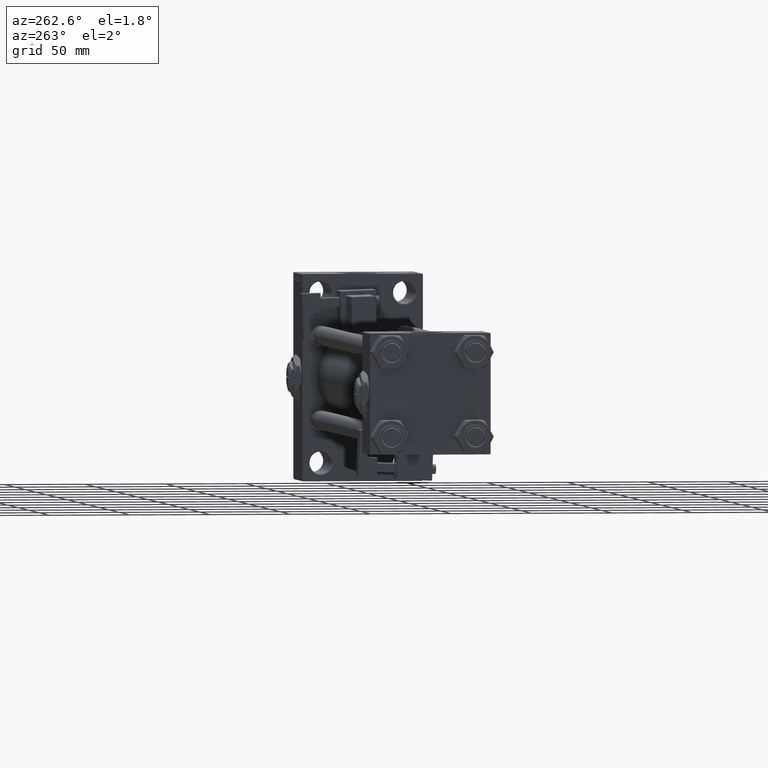
[diagram: clean part render]
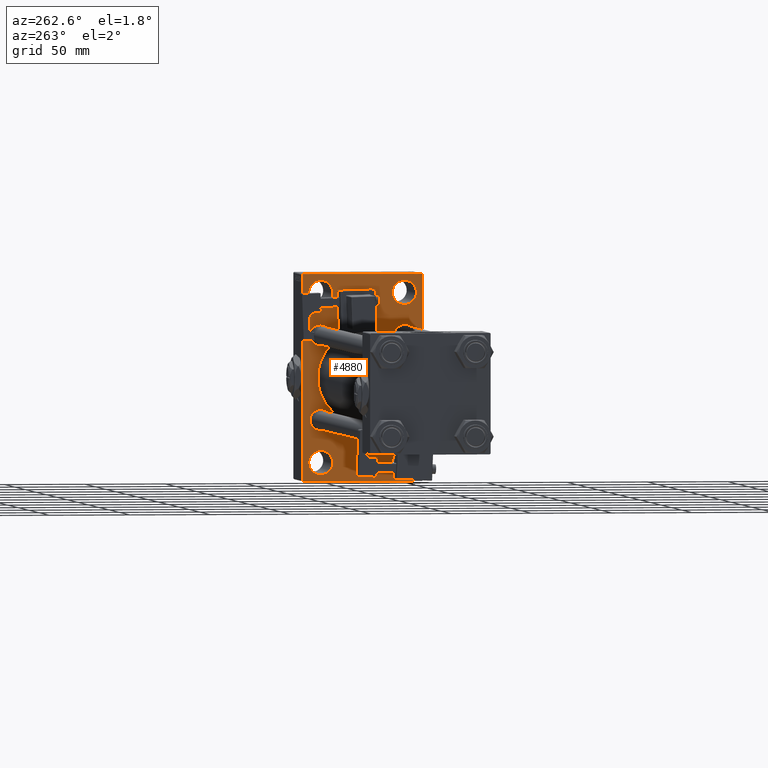
[diagram: same view with one face highlighted and labeled with its STEP entity id]
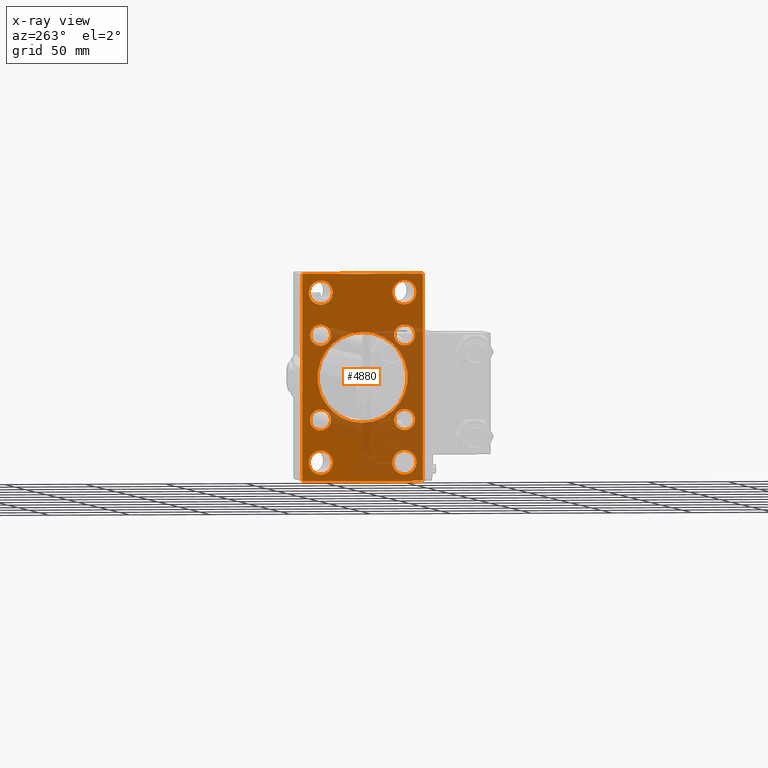
[diagram: x-ray of the same camera — body ghosted, the highlighted face saturated]
A machine part, auxiliary view. The second image highlights one B-rep face of the part: STEP entity #4880.
The next image is the same camera in x-ray: the body ghosted, the highlighted face saturated — about 35% of this face is hidden behind the body in this view.
In plain terms, the highlighted planar face has unit normal (-1, 0, 0).
Its self-contained STEP definition (entity closure, byte-faithful):
#28 = EDGE_LOOP ( 'NONE', ( #36907, #29614 ) ) ;
#194 = VERTEX_POINT ( 'NONE', #18287 ) ;
#559 = CARTESIAN_POINT ( 'NONE',  ( 324.9999999999999432, 37.50000000000000000, 63.49999999999998579 ) ) ;
#789 = AXIS2_PLACEMENT_3D ( 'NONE', #13580, #29980, #33891 ) ;
#1114 = ORIENTED_EDGE ( 'NONE', *, *, #14026, .T. ) ;
#1888 = DIRECTION ( 'NONE',  ( 0.000000000000000000, 0.000000000000000000, 1.000000000000000000 ) ) ;
#2473 = CARTESIAN_POINT ( 'NONE',  ( 324.9999999999999432, 26.14999999999999858, 26.15000000000000213 ) ) ;
#2525 = DIRECTION ( 'NONE',  ( 1.000000000000000000, -0.000000000000000000, 0.000000000000000000 ) ) ;
#2641 = DIRECTION ( 'NONE',  ( 0.000000000000000000, -1.000000000000000000, -1.850371707708594563E-16 ) ) ;
#2685 = FACE_BOUND ( 'NONE', #7656, .T. ) ;
#2834 = VECTOR ( 'NONE', #23923, 1000.000000000000000 ) ;
#2847 = EDGE_LOOP ( 'NONE', ( #1114, #29657 ) ) ;
#3502 = DIRECTION ( 'NONE',  ( 1.000000000000000000, -0.000000000000000000, 0.000000000000000000 ) ) ;
#3560 = DIRECTION ( 'NONE',  ( 1.000000000000000000, -0.000000000000000000, 0.000000000000000000 ) ) ;
#3580 = DIRECTION ( 'NONE',  ( 0.000000000000000000, 0.000000000000000000, 1.000000000000000000 ) ) ;
#3753 = DIRECTION ( 'NONE',  ( 1.000000000000000000, 0.000000000000000000, 0.000000000000000000 ) ) ;
#3791 = VERTEX_POINT ( 'NONE', #25680 ) ;
#4073 = AXIS2_PLACEMENT_3D ( 'NONE', #21736, #29541, #34227 ) ;
#4123 = LINE ( 'NONE', #20536, #2834 ) ;
#4232 = ORIENTED_EDGE ( 'NONE', *, *, #45937, .T. ) ;
#4346 = ORIENTED_EDGE ( 'NONE', *, *, #50783, .T. ) ;
#4652 = ORIENTED_EDGE ( 'NONE', *, *, #17620, .T. ) ;
#4669 = EDGE_CURVE ( 'NONE', #3791, #30598, #22894, .T. ) ;
#4880 = ADVANCED_FACE ( 'NONE', ( #38348, #30798, #51347, #2685, #26891, #15683, #31559, #6841, #11260, #7092 ), #34953, .T. ) ;
#5154 = AXIS2_PLACEMENT_3D ( 'NONE', #35069, #3560, #18961 ) ;
#5476 = DIRECTION ( 'NONE',  ( 0.000000000000000000, 0.000000000000000000, 1.000000000000000000 ) ) ;
#5696 = LINE ( 'NONE', #28866, #48211 ) ;
#5892 = EDGE_CURVE ( 'NONE', #20104, #26199, #13785, .T. ) ;
#5904 = EDGE_CURVE ( 'NONE', #36179, #7435, #18814, .T. ) ;
#6037 = ORIENTED_EDGE ( 'NONE', *, *, #30837, .T. ) ;
#6530 = CARTESIAN_POINT ( 'NONE',  ( 324.9999999999999432, -2.602085213965210642E-15, 28.00000000000000000 ) ) ;
#6724 = ORIENTED_EDGE ( 'NONE', *, *, #5904, .T. ) ;
#6841 = FACE_BOUND ( 'NONE', #2847, .T. ) ;
#6944 = CIRCLE ( 'NONE', #16951, 7.500000000000117240 ) ;
#6951 = CARTESIAN_POINT ( 'NONE',  ( 324.9999999999999432, -26.14999999999999147, 26.15000000000000924 ) ) ;
#7016 = VERTEX_POINT ( 'NONE', #33021 ) ;
#7044 = LINE ( 'NONE', #30755, #45194 ) ;
#7081 = AXIS2_PLACEMENT_3D ( 'NONE', #11769, #47434, #22988 ) ;
#7092 = FACE_OUTER_BOUND ( 'NONE', #9148, .T. ) ;
#7135 = DIRECTION ( 'NONE',  ( 0.000000000000000000, 0.000000000000000000, 1.000000000000000000 ) ) ;
#7435 = VERTEX_POINT ( 'NONE', #51402 ) ;
#7458 = VECTOR ( 'NONE', #39683, 1000.000000000000114 ) ;
#7656 = EDGE_LOOP ( 'NONE', ( #6724, #4346 ) ) ;
#8130 = CARTESIAN_POINT ( 'NONE',  ( 324.9999999999999432, -25.99999999999999645, 44.99999999999987921 ) ) ;
#8184 = CIRCLE ( 'NONE', #34771, 6.500000000000008882 ) ;
#8537 = CIRCLE ( 'NONE', #44296, 7.500000000000117240 ) ;
#8573 = VERTEX_POINT ( 'NONE', #48401 ) ;
#9148 = EDGE_LOOP ( 'NONE', ( #6037, #36650, #18672, #50291, #50804, #24155, #19272, #4232 ) ) ;
#10343 = CARTESIAN_POINT ( 'NONE',  ( 324.9999999999999432, 26.14999999999999858, -26.15000000000000213 ) ) ;
#11001 = CIRCLE ( 'NONE', #33463, 7.500000000000117240 ) ;
#11260 = FACE_BOUND ( 'NONE', #25969, .T. ) ;
#11261 = CARTESIAN_POINT ( 'NONE',  ( 324.9999999999999432, 26.14999999999999858, -32.65000000000001279 ) ) ;
#11759 = VERTEX_POINT ( 'NONE', #37993 ) ;
#11769 = CARTESIAN_POINT ( 'NONE',  ( 324.9999999999999432, 0.000000000000000000, 0.000000000000000000 ) ) ;
#11891 = AXIS2_PLACEMENT_3D ( 'NONE', #36934, #44245, #32271 ) ;
#11980 = DIRECTION ( 'NONE',  ( 0.000000000000000000, 0.000000000000000000, 1.000000000000000000 ) ) ;
#12142 = AXIS2_PLACEMENT_3D ( 'NONE', #17724, #41143, #5476 ) ;
#12430 = LINE ( 'NONE', #20249, #41712 ) ;
#12734 = EDGE_CURVE ( 'NONE', #35271, #40372, #22274, .T. ) ;
#12990 = ORIENTED_EDGE ( 'NONE', *, *, #5892, .T. ) ;
#13375 = CARTESIAN_POINT ( 'NONE',  ( 324.9999999999999432, 36.99999999999993605, -64.00000000000000000 ) ) ;
#13580 = CARTESIAN_POINT ( 'NONE',  ( 324.9999999999999432, 26.14999999999999858, 26.15000000000000213 ) ) ;
#13785 = CIRCLE ( 'NONE', #12142, 7.500000000000117240 ) ;
#13921 = DIRECTION ( 'NONE',  ( 0.000000000000000000, 0.7071067811865867636, -0.7071067811865081598 ) ) ;
#14026 = EDGE_CURVE ( 'NONE', #16031, #29623, #25640, .T. ) ;
#14074 = EDGE_CURVE ( 'NONE', #23581, #7016, #8184, .T. ) ;
#14198 = VERTEX_POINT ( 'NONE', #21692 ) ;
#14453 = AXIS2_PLACEMENT_3D ( 'NONE', #37562, #37035, #1888 ) ;
#14722 = DIRECTION ( 'NONE',  ( 0.000000000000000000, 0.000000000000000000, 1.000000000000000000 ) ) ;
#14809 = CARTESIAN_POINT ( 'NONE',  ( 324.9999999999999432, 37.49999999999999289, -64.00000000000000000 ) ) ;
#14919 = CIRCLE ( 'NONE', #4073, 6.500000000000008882 ) ;
#15422 = ORIENTED_EDGE ( 'NONE', *, *, #21673, .T. ) ;
#15518 = EDGE_LOOP ( 'NONE', ( #47015, #12990 ) ) ;
#15655 = CARTESIAN_POINT ( 'NONE',  ( 324.9999999999999432, 26.00000000000000000, -52.49999999999999289 ) ) ;
#15683 = FACE_BOUND ( 'NONE', #18484, .T. ) ;
#15907 = DIRECTION ( 'NONE',  ( 0.000000000000000000, 0.000000000000000000, 1.000000000000000000 ) ) ;
#16031 = VERTEX_POINT ( 'NONE', #41544 ) ;
#16074 = CARTESIAN_POINT ( 'NONE',  ( 324.9999999999999432, -36.99999999999992895, 63.99999999999997158 ) ) ;
#16188 = EDGE_CURVE ( 'NONE', #11759, #33267, #35509, .T. ) ;
#16337 = DIRECTION ( 'NONE',  ( 1.000000000000000000, -0.000000000000000000, 0.000000000000000000 ) ) ;
#16940 = EDGE_CURVE ( 'NONE', #39034, #194, #5696, .T. ) ;
#16951 = AXIS2_PLACEMENT_3D ( 'NONE', #39058, #47643, #11980 ) ;
#16957 = CIRCLE ( 'NONE', #14453, 7.500000000000117240 ) ;
#17620 = EDGE_CURVE ( 'NONE', #7016, #23581, #25792, .T. ) ;
#17724 = CARTESIAN_POINT ( 'NONE',  ( 324.9999999999999432, -25.99999999999999645, -52.49999999999999289 ) ) ;
#18287 = CARTESIAN_POINT ( 'NONE',  ( 324.9999999999999432, 37.49999999999999289, -63.50000000000001421 ) ) ;
#18362 = CARTESIAN_POINT ( 'NONE',  ( 324.9999999999999432, -37.49999999999999289, -63.50000000000002842 ) ) ;
#18370 = DIRECTION ( 'NONE',  ( 1.000000000000000000, -0.000000000000000000, 0.000000000000000000 ) ) ;
#18484 = EDGE_LOOP ( 'NONE', ( #19901, #4652 ) ) ;
#18672 = ORIENTED_EDGE ( 'NONE', *, *, #16188, .F. ) ;
#18814 = CIRCLE ( 'NONE', #33749, 7.500000000000117240 ) ;
#18961 = DIRECTION ( 'NONE',  ( 0.000000000000000000, 0.000000000000000000, 1.000000000000000000 ) ) ;
#19272 = ORIENTED_EDGE ( 'NONE', *, *, #16940, .T. ) ;
#19901 = ORIENTED_EDGE ( 'NONE', *, *, #14074, .T. ) ;
#20010 = VERTEX_POINT ( 'NONE', #32538 ) ;
#20104 = VERTEX_POINT ( 'NONE', #46327 ) ;
#20131 = VERTEX_POINT ( 'NONE', #21871 ) ;
#20159 = CARTESIAN_POINT ( 'NONE',  ( 324.9999999999999432, -25.99999999999999645, -44.99999999999987210 ) ) ;
#20249 = CARTESIAN_POINT ( 'NONE',  ( 324.9999999999999432, 50.49999999999739941, -50.50000000000441247 ) ) ;
#20369 = EDGE_CURVE ( 'NONE', #29623, #16031, #46829, .T. ) ;
#20521 = ORIENTED_EDGE ( 'NONE', *, *, #49539, .T. ) ;
#20536 = CARTESIAN_POINT ( 'NONE',  ( 324.9999999999999432, -50.49999999999969447, 50.50000000000039080 ) ) ;
#21673 = EDGE_CURVE ( 'NONE', #43963, #43022, #16957, .T. ) ;
#21692 = CARTESIAN_POINT ( 'NONE',  ( 324.9999999999999432, -25.99999999999999645, 60.00000000000011369 ) ) ;
#21736 = CARTESIAN_POINT ( 'NONE',  ( 324.9999999999999432, -26.14999999999999147, 26.15000000000000924 ) ) ;
#21871 = CARTESIAN_POINT ( 'NONE',  ( 324.9999999999999432, -36.99999999999993605, -64.00000000000001421 ) ) ;
#22089 = DIRECTION ( 'NONE',  ( 0.000000000000000000, 0.000000000000000000, 1.000000000000000000 ) ) ;
#22251 = EDGE_CURVE ( 'NONE', #11759, #39876, #4123, .T. ) ;
#22274 = CIRCLE ( 'NONE', #24731, 6.500000000000008882 ) ;
#22440 = CIRCLE ( 'NONE', #30744, 7.500000000000117240 ) ;
#22894 = CIRCLE ( 'NONE', #39526, 28.00000000000000000 ) ;
#22988 = DIRECTION ( 'NONE',  ( -0.000000000000000000, 0.000000000000000000, 1.000000000000000000 ) ) ;
#23052 = CARTESIAN_POINT ( 'NONE',  ( 324.9999999999999432, -2.602085213965210642E-15, 0.000000000000000000 ) ) ;
#23304 = CARTESIAN_POINT ( 'NONE',  ( 324.9999999999999432, -25.99999999999999645, 52.50000000000000000 ) ) ;
#23581 = VERTEX_POINT ( 'NONE', #40618 ) ;
#23923 = DIRECTION ( 'NONE',  ( -0.000000000000000000, 0.7071067811865524577, 0.7071067811865426878 ) ) ;
#24155 = ORIENTED_EDGE ( 'NONE', *, *, #44520, .T. ) ;
#24387 = AXIS2_PLACEMENT_3D ( 'NONE', #40280, #2525, #29615 ) ;
#24520 = CARTESIAN_POINT ( 'NONE',  ( 324.9999999999999432, 26.00000000000000000, 60.00000000000010658 ) ) ;
#24566 = ORIENTED_EDGE ( 'NONE', *, *, #47680, .T. ) ;
#24731 = AXIS2_PLACEMENT_3D ( 'NONE', #10343, #25721, #46270 ) ;
#25011 = DIRECTION ( 'NONE',  ( 0.000000000000000000, 0.000000000000000000, 1.000000000000000000 ) ) ;
#25234 = EDGE_LOOP ( 'NONE', ( #27170, #39634 ) ) ;
#25640 = CIRCLE ( 'NONE', #27301, 6.500000000000008882 ) ;
#25680 = CARTESIAN_POINT ( 'NONE',  ( 324.9999999999999432, 8.269258236473784371E-16, -28.00000000000000000 ) ) ;
#25721 = DIRECTION ( 'NONE',  ( 1.000000000000000000, -0.000000000000000000, 0.000000000000000000 ) ) ;
#25792 = CIRCLE ( 'NONE', #789, 6.500000000000008882 ) ;
#25969 = EDGE_LOOP ( 'NONE', ( #20521, #47656 ) ) ;
#26199 = VERTEX_POINT ( 'NONE', #20159 ) ;
#26808 = CIRCLE ( 'NONE', #5154, 6.500000000000008882 ) ;
#26891 = FACE_BOUND ( 'NONE', #25234, .T. ) ;
#27170 = ORIENTED_EDGE ( 'NONE', *, *, #36521, .T. ) ;
#27301 = AXIS2_PLACEMENT_3D ( 'NONE', #49862, #46211, #7135 ) ;
#28343 = CIRCLE ( 'NONE', #38344, 7.500000000000117240 ) ;
#28866 = CARTESIAN_POINT ( 'NONE',  ( 324.9999999999999432, 37.50000000000000000, 63.99999999999998579 ) ) ;
#29216 = CARTESIAN_POINT ( 'NONE',  ( 324.9999999999999432, 26.14999999999999858, -19.64999999999999503 ) ) ;
#29541 = DIRECTION ( 'NONE',  ( 1.000000000000000000, -0.000000000000000000, 0.000000000000000000 ) ) ;
#29614 = ORIENTED_EDGE ( 'NONE', *, *, #37649, .T. ) ;
#29615 = DIRECTION ( 'NONE',  ( 0.000000000000000000, 0.000000000000000000, 1.000000000000000000 ) ) ;
#29623 = VERTEX_POINT ( 'NONE', #36626 ) ;
#29657 = ORIENTED_EDGE ( 'NONE', *, *, #20369, .T. ) ;
#29980 = DIRECTION ( 'NONE',  ( 1.000000000000000000, -0.000000000000000000, 0.000000000000000000 ) ) ;
#30598 = VERTEX_POINT ( 'NONE', #6530 ) ;
#30744 = AXIS2_PLACEMENT_3D ( 'NONE', #23304, #3502, #51146 ) ;
#30755 = CARTESIAN_POINT ( 'NONE',  ( 324.9999999999999432, 37.50000000000000000, 63.99999999999998579 ) ) ;
#30798 = FACE_BOUND ( 'NONE', #15518, .T. ) ;
#30837 = EDGE_CURVE ( 'NONE', #34066, #20131, #50456, .T. ) ;
#30925 = DIRECTION ( 'NONE',  ( 0.000000000000000000, -1.000000000000000000, -1.850371707708594563E-16 ) ) ;
#31559 = FACE_BOUND ( 'NONE', #44486, .T. ) ;
#32271 = DIRECTION ( 'NONE',  ( 0.000000000000000000, 0.000000000000000000, -1.000000000000000000 ) ) ;
#32326 = AXIS2_PLACEMENT_3D ( 'NONE', #6951, #49934, #22089 ) ;
#32538 = CARTESIAN_POINT ( 'NONE',  ( 324.9999999999999432, -26.14999999999999147, 19.65000000000000213 ) ) ;
#33021 = CARTESIAN_POINT ( 'NONE',  ( 324.9999999999999432, 26.14999999999999858, 19.64999999999999147 ) ) ;
#33267 = VERTEX_POINT ( 'NONE', #18362 ) ;
#33383 = ORIENTED_EDGE ( 'NONE', *, *, #12734, .T. ) ;
#33463 = AXIS2_PLACEMENT_3D ( 'NONE', #15655, #35936, #15907 ) ;
#33749 = AXIS2_PLACEMENT_3D ( 'NONE', #49477, #40621, #25011 ) ;
#33891 = DIRECTION ( 'NONE',  ( 0.000000000000000000, 0.000000000000000000, 1.000000000000000000 ) ) ;
#34066 = VERTEX_POINT ( 'NONE', #13375 ) ;
#34227 = DIRECTION ( 'NONE',  ( 0.000000000000000000, 0.000000000000000000, 1.000000000000000000 ) ) ;
#34771 = AXIS2_PLACEMENT_3D ( 'NONE', #2473, #18370, #14722 ) ;
#34827 = CIRCLE ( 'NONE', #32326, 6.500000000000008882 ) ;
#34953 = PLANE ( 'NONE',  #7081 ) ;
#35069 = CARTESIAN_POINT ( 'NONE',  ( 324.9999999999999432, 26.14999999999999858, -26.15000000000000213 ) ) ;
#35271 = VERTEX_POINT ( 'NONE', #11261 ) ;
#35509 = LINE ( 'NONE', #50886, #50674 ) ;
#35936 = DIRECTION ( 'NONE',  ( 1.000000000000000000, -0.000000000000000000, 0.000000000000000000 ) ) ;
#36179 = VERTEX_POINT ( 'NONE', #24520 ) ;
#36521 = EDGE_CURVE ( 'NONE', #39368, #20010, #34827, .T. ) ;
#36626 = CARTESIAN_POINT ( 'NONE',  ( 324.9999999999999432, -26.14999999999999147, -32.65000000000001990 ) ) ;
#36650 = ORIENTED_EDGE ( 'NONE', *, *, #37687, .T. ) ;
#36847 = CIRCLE ( 'NONE', #11891, 28.00000000000000000 ) ;
#36907 = ORIENTED_EDGE ( 'NONE', *, *, #44148, .T. ) ;
#36934 = CARTESIAN_POINT ( 'NONE',  ( 324.9999999999999432, -2.602085213965210642E-15, 0.000000000000000000 ) ) ;
#37035 = DIRECTION ( 'NONE',  ( 1.000000000000000000, -0.000000000000000000, 0.000000000000000000 ) ) ;
#37562 = CARTESIAN_POINT ( 'NONE',  ( 324.9999999999999432, 26.00000000000000000, -52.49999999999999289 ) ) ;
#37649 = EDGE_CURVE ( 'NONE', #39513, #14198, #22440, .T. ) ;
#37687 = EDGE_CURVE ( 'NONE', #20131, #33267, #47494, .T. ) ;
#37769 = ORIENTED_EDGE ( 'NONE', *, *, #47936, .T. ) ;
#37993 = CARTESIAN_POINT ( 'NONE',  ( 324.9999999999999432, -37.49999999999999289, 63.49999999999991473 ) ) ;
#38344 = AXIS2_PLACEMENT_3D ( 'NONE', #46870, #38798, #39827 ) ;
#38348 = FACE_BOUND ( 'NONE', #28, .T. ) ;
#38798 = DIRECTION ( 'NONE',  ( 1.000000000000000000, -0.000000000000000000, 0.000000000000000000 ) ) ;
#39034 = VERTEX_POINT ( 'NONE', #559 ) ;
#39058 = CARTESIAN_POINT ( 'NONE',  ( 324.9999999999999432, 26.00000000000000000, 52.49999999999999289 ) ) ;
#39244 = CARTESIAN_POINT ( 'NONE',  ( 324.9999999999999432, -25.99999999999999645, -52.49999999999999289 ) ) ;
#39368 = VERTEX_POINT ( 'NONE', #44890 ) ;
#39513 = VERTEX_POINT ( 'NONE', #8130 ) ;
#39526 = AXIS2_PLACEMENT_3D ( 'NONE', #23052, #3753, #39684 ) ;
#39634 = ORIENTED_EDGE ( 'NONE', *, *, #40182, .T. ) ;
#39683 = DIRECTION ( 'NONE',  ( 0.000000000000000000, -0.7071067811865965336, 0.7071067811864985009 ) ) ;
#39684 = DIRECTION ( 'NONE',  ( 0.000000000000000000, 0.000000000000000000, -1.000000000000000000 ) ) ;
#39827 = DIRECTION ( 'NONE',  ( 0.000000000000000000, 0.000000000000000000, 1.000000000000000000 ) ) ;
#39876 = VERTEX_POINT ( 'NONE', #16074 ) ;
#40002 = VECTOR ( 'NONE', #13921, 1000.000000000000000 ) ;
#40182 = EDGE_CURVE ( 'NONE', #20010, #39368, #14919, .T. ) ;
#40280 = CARTESIAN_POINT ( 'NONE',  ( 324.9999999999999432, -26.14999999999999147, -26.15000000000000924 ) ) ;
#40372 = VERTEX_POINT ( 'NONE', #29216 ) ;
#40618 = CARTESIAN_POINT ( 'NONE',  ( 324.9999999999999432, 26.14999999999999858, 32.65000000000001990 ) ) ;
#40621 = DIRECTION ( 'NONE',  ( 1.000000000000000000, -0.000000000000000000, 0.000000000000000000 ) ) ;
#41143 = DIRECTION ( 'NONE',  ( 1.000000000000000000, -0.000000000000000000, 0.000000000000000000 ) ) ;
#41544 = CARTESIAN_POINT ( 'NONE',  ( 324.9999999999999432, -26.14999999999999147, -19.65000000000000213 ) ) ;
#41712 = VECTOR ( 'NONE', #43414, 1000.000000000000114 ) ;
#41876 = DIRECTION ( 'NONE',  ( 0.000000000000000000, -5.421010862427522170E-17, -1.000000000000000000 ) ) ;
#43022 = VERTEX_POINT ( 'NONE', #46044 ) ;
#43414 = DIRECTION ( 'NONE',  ( -0.000000000000000000, -0.7071067811865965336, -0.7071067811864985009 ) ) ;
#43963 = VERTEX_POINT ( 'NONE', #44568 ) ;
#44148 = EDGE_CURVE ( 'NONE', #14198, #39513, #28343, .T. ) ;
#44245 = DIRECTION ( 'NONE',  ( 1.000000000000000000, 0.000000000000000000, 0.000000000000000000 ) ) ;
#44296 = AXIS2_PLACEMENT_3D ( 'NONE', #39244, #16337, #3580 ) ;
#44486 = EDGE_LOOP ( 'NONE', ( #37769, #33383 ) ) ;
#44520 = EDGE_CURVE ( 'NONE', #8573, #39034, #49582, .T. ) ;
#44568 = CARTESIAN_POINT ( 'NONE',  ( 324.9999999999999432, 26.00000000000000000, -60.00000000000010658 ) ) ;
#44890 = CARTESIAN_POINT ( 'NONE',  ( 324.9999999999999432, -26.14999999999999147, 32.65000000000001990 ) ) ;
#45194 = VECTOR ( 'NONE', #2641, 1000.000000000000000 ) ;
#45937 = EDGE_CURVE ( 'NONE', #194, #34066, #12430, .T. ) ;
#46044 = CARTESIAN_POINT ( 'NONE',  ( 324.9999999999999432, 26.00000000000000000, -44.99999999999987210 ) ) ;
#46047 = EDGE_CURVE ( 'NONE', #26199, #20104, #8537, .T. ) ;
#46211 = DIRECTION ( 'NONE',  ( 1.000000000000000000, -0.000000000000000000, 0.000000000000000000 ) ) ;
#46270 = DIRECTION ( 'NONE',  ( 0.000000000000000000, 0.000000000000000000, 1.000000000000000000 ) ) ;
#46327 = CARTESIAN_POINT ( 'NONE',  ( 324.9999999999999432, -25.99999999999999645, -60.00000000000010658 ) ) ;
#46596 = EDGE_LOOP ( 'NONE', ( #24566, #15422 ) ) ;
#46829 = CIRCLE ( 'NONE', #24387, 6.500000000000008882 ) ;
#46870 = CARTESIAN_POINT ( 'NONE',  ( 324.9999999999999432, -25.99999999999999645, 52.50000000000000000 ) ) ;
#47015 = ORIENTED_EDGE ( 'NONE', *, *, #46047, .T. ) ;
#47434 = DIRECTION ( 'NONE',  ( -1.000000000000000000, 0.000000000000000000, -0.000000000000000000 ) ) ;
#47494 = LINE ( 'NONE', #50894, #7458 ) ;
#47643 = DIRECTION ( 'NONE',  ( 1.000000000000000000, -0.000000000000000000, 0.000000000000000000 ) ) ;
#47656 = ORIENTED_EDGE ( 'NONE', *, *, #4669, .T. ) ;
#47680 = EDGE_CURVE ( 'NONE', #43022, #43963, #11001, .T. ) ;
#47936 = EDGE_CURVE ( 'NONE', #40372, #35271, #26808, .T. ) ;
#48211 = VECTOR ( 'NONE', #41876, 1000.000000000000000 ) ;
#48401 = CARTESIAN_POINT ( 'NONE',  ( 324.9999999999999432, 36.99999999999994316, 63.99999999999998579 ) ) ;
#48534 = CARTESIAN_POINT ( 'NONE',  ( 324.9999999999999432, 50.49999999999791100, 50.50000000000351719 ) ) ;
#49477 = CARTESIAN_POINT ( 'NONE',  ( 324.9999999999999432, 26.00000000000000000, 52.49999999999999289 ) ) ;
#49539 = EDGE_CURVE ( 'NONE', #30598, #3791, #36847, .T. ) ;
#49582 = LINE ( 'NONE', #48534, #40002 ) ;
#49862 = CARTESIAN_POINT ( 'NONE',  ( 324.9999999999999432, -26.14999999999999147, -26.15000000000000924 ) ) ;
#49934 = DIRECTION ( 'NONE',  ( 1.000000000000000000, -0.000000000000000000, 0.000000000000000000 ) ) ;
#50291 = ORIENTED_EDGE ( 'NONE', *, *, #22251, .T. ) ;
#50456 = LINE ( 'NONE', #14809, #51283 ) ;
#50674 = VECTOR ( 'NONE', #51397, 1000.000000000000000 ) ;
#50684 = EDGE_CURVE ( 'NONE', #8573, #39876, #7044, .T. ) ;
#50783 = EDGE_CURVE ( 'NONE', #7435, #36179, #6944, .T. ) ;
#50804 = ORIENTED_EDGE ( 'NONE', *, *, #50684, .F. ) ;
#50886 = CARTESIAN_POINT ( 'NONE',  ( 324.9999999999999432, -37.49999999999999289, 63.99999999999997158 ) ) ;
#50894 = CARTESIAN_POINT ( 'NONE',  ( 324.9999999999999432, -50.49999999999740652, -50.50000000000441958 ) ) ;
#51146 = DIRECTION ( 'NONE',  ( 0.000000000000000000, 0.000000000000000000, 1.000000000000000000 ) ) ;
#51283 = VECTOR ( 'NONE', #30925, 1000.000000000000000 ) ;
#51347 = FACE_BOUND ( 'NONE', #46596, .T. ) ;
#51397 = DIRECTION ( 'NONE',  ( 0.000000000000000000, 0.000000000000000000, -1.000000000000000000 ) ) ;
#51402 = CARTESIAN_POINT ( 'NONE',  ( 324.9999999999999432, 26.00000000000000000, 44.99999999999987210 ) ) ;